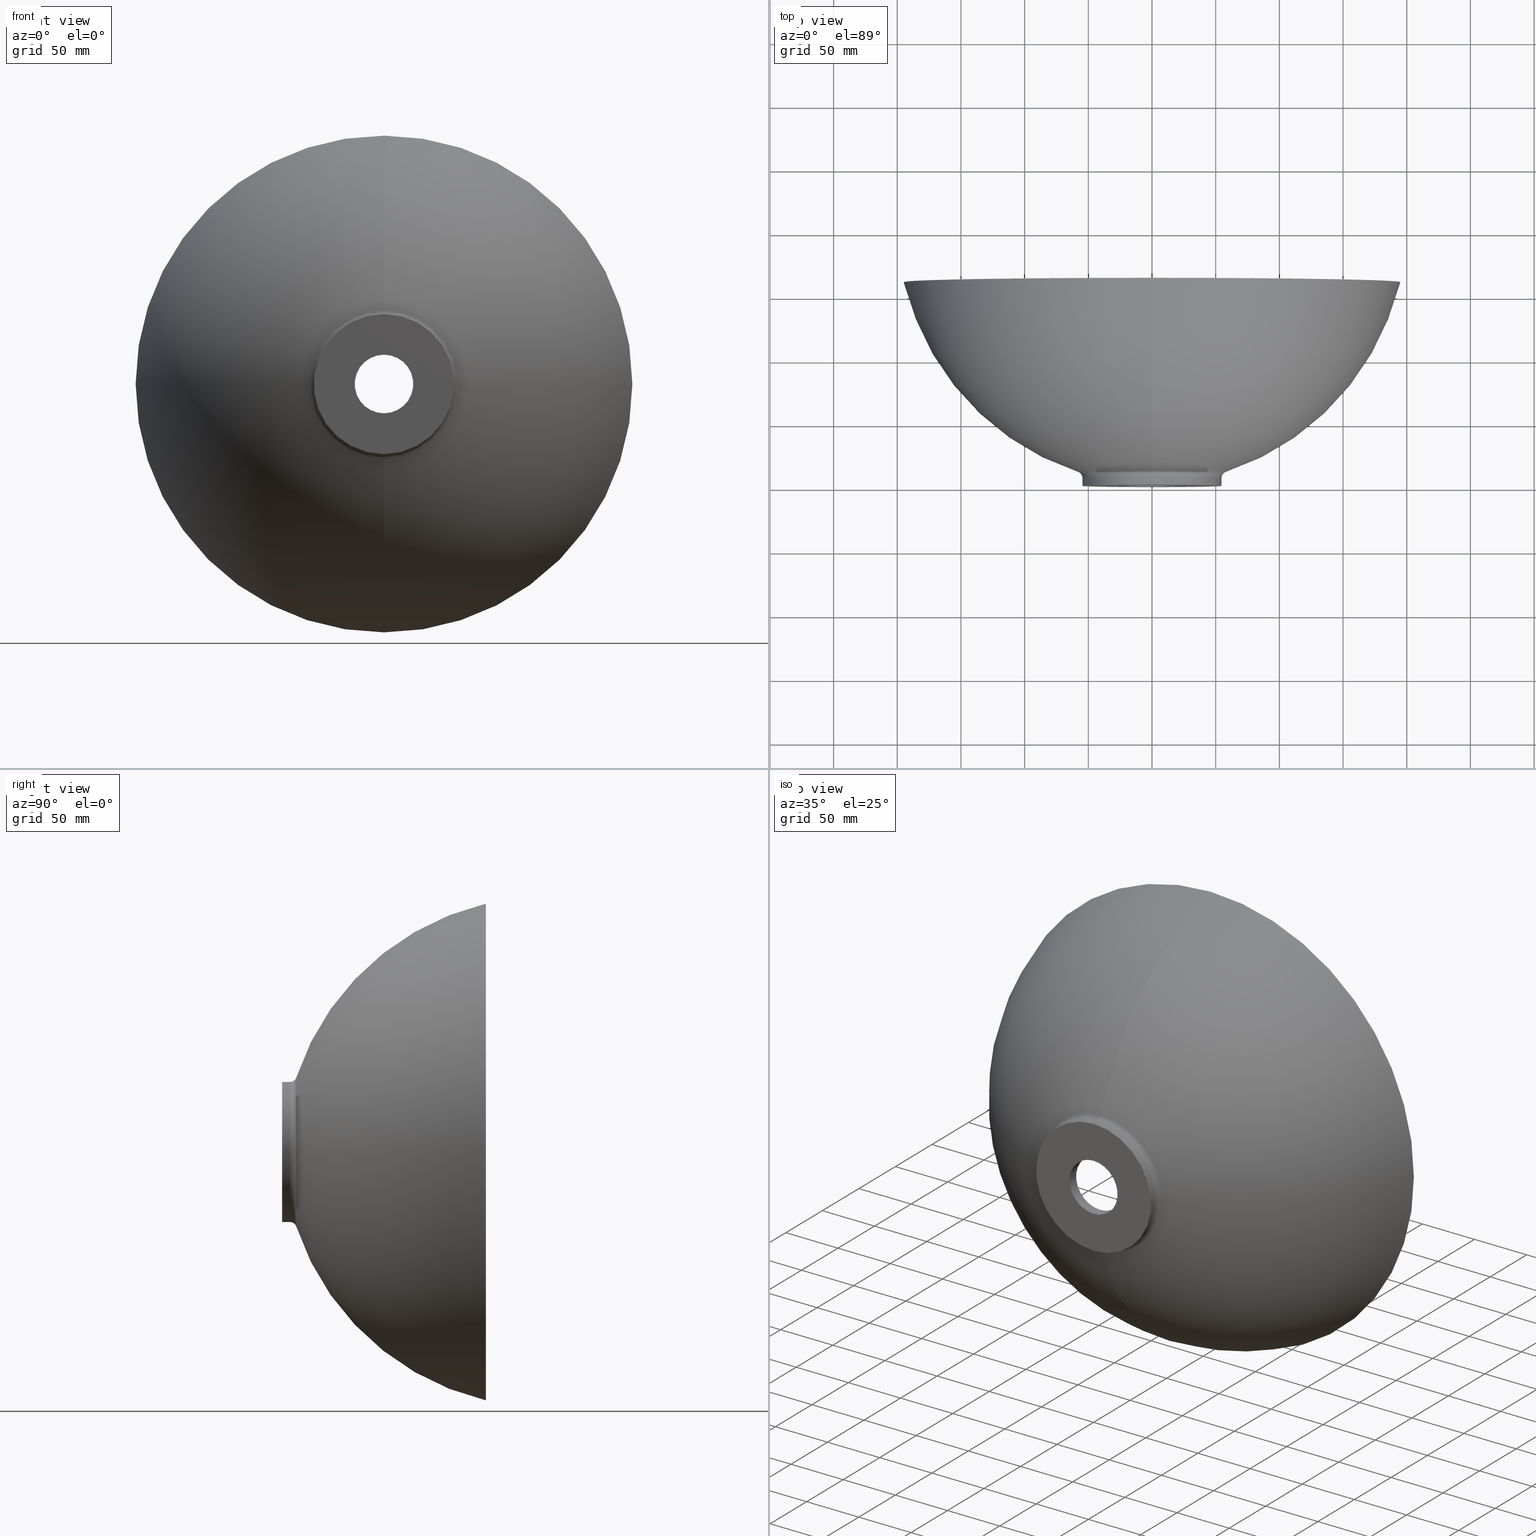
[diagram: canonical four-view strip — front | top / right | iso, engineering-drawing reading convention]
A machine part, canonical four-view strip (front | top / right | iso — engineering-drawing reading convention). The complete STEP part file that produces these views, byte-faithful:
ISO-10303-21;
HEADER;
FILE_DESCRIPTION (( 'STEP AP214' ),
    '1' );
FILE_NAME ('D787-SO.STEP',
    '2018-06-29T09:20:00',
    ( '' ),
    ( '' ),
    'SwSTEP 2.0',
    'SolidWorks 2017',
    '' );
FILE_SCHEMA (( 'AUTOMOTIVE_DESIGN' ));
ENDSEC;

DATA;
#1 = APPLICATION_PROTOCOL_DEFINITION ( 'draft international standard', 'automotive_design', 1998, #255 ) ;
#2 = DIRECTION ( 'NONE',  ( -0.0000000000000000000, -1.000000000000000000, -0.0000000000000000000 ) ) ;
#3 = CARTESIAN_POINT ( 'NONE',  ( 0.0000000000000000000, 20.00000000000000000, 0.0000000000000000000 ) ) ;
#4 = ORIENTED_EDGE ( 'NONE', *, *, #148, .T. ) ;
#5 = DIRECTION ( 'NONE',  ( 0.0000000000000000000, 0.0000000000000000000, 1.000000000000000000 ) ) ;
#6 = ORIENTED_EDGE ( 'NONE', *, *, #381, .F. ) ;
#7 = CARTESIAN_POINT ( 'NONE',  ( 0.0000000000000000000, 140.0000000000000000, 0.0000000000000000000 ) ) ;
#8 = DIRECTION ( 'NONE',  ( 0.0000000000000000000, 1.000000000000000000, 0.0000000000000000000 ) ) ;
#9 = DIRECTION ( 'NONE',  ( -0.0000000000000000000, -1.000000000000000000, -0.0000000000000000000 ) ) ;
#10 = EDGE_CURVE ( 'NONE', #448, #210, #238, .T. ) ;
#11 = DIRECTION ( 'NONE',  ( 0.0000000000000000000, 0.0000000000000000000, -1.000000000000000000 ) ) ;
#12 = DIRECTION ( 'NONE',  ( -1.000000000000000000, 0.0000000000000000000, 0.0000000000000000000 ) ) ;
#13 = FACE_OUTER_BOUND ( 'NONE', #297, .T. ) ;
#14 = CARTESIAN_POINT ( 'NONE',  ( 1.284747968416844600E-014, 20.00000000000000000, 36.10928951853636400 ) ) ;
#15 = DIRECTION ( 'NONE',  ( 0.0000000000000000000, 0.0000000000000000000, 1.000000000000000000 ) ) ;
#16 = VERTEX_POINT ( 'NONE', #233 ) ;
#17 = EDGE_CURVE ( 'NONE', #246, #86, #368, .T. ) ;
#18 = ORIENTED_EDGE ( 'NONE', *, *, #403, .F. ) ;
#19 = AXIS2_PLACEMENT_3D ( 'NONE', #266, #230, #312 ) ;
#20 = LINE ( 'NONE', #151, #418 ) ;
#21 = VERTEX_POINT ( 'NONE', #342 ) ;
#22 = CARTESIAN_POINT ( 'NONE',  ( 0.0000000000000000000, 207.6851594974558900, 0.0000000000000000000 ) ) ;
#23 = PRODUCT_DEFINITION_SHAPE ( 'NONE', 'NONE',  #265 ) ;
#24 = CARTESIAN_POINT ( 'NONE',  ( 0.0000000000000000000, 207.6851594974558900, 0.0000000000000000000 ) ) ;
#25 = DIRECTION ( 'NONE',  ( -1.000000000000000000, 0.0000000000000000000, 0.0000000000000000000 ) ) ;
#26 = VERTEX_POINT ( 'NONE', #413 ) ;
#27 = CIRCLE ( 'NONE', #95, 23.00000000000000000 ) ;
#28 = ORIENTED_EDGE ( 'NONE', *, *, #302, .F. ) ;
#29 = AXIS2_PLACEMENT_3D ( 'NONE', #22, #134, #304 ) ;
#30 = VERTEX_POINT ( 'NONE', #140 ) ;
#31 = EDGE_LOOP ( 'NONE', ( #453, #185, #42, #218 ) ) ;
#32 = DIRECTION ( 'NONE',  ( 0.0000000000000000000, 0.0000000000000000000, -1.000000000000000000 ) ) ;
#33 = DIRECTION ( 'NONE',  ( -0.0000000000000000000, -1.000000000000000000, -0.0000000000000000000 ) ) ;
#34 = ORIENTED_EDGE ( 'NONE', *, *, #114, .T. ) ;
#35 = CARTESIAN_POINT ( 'NONE',  ( 0.0000000000000000000, 207.6851594974558900, 6.448385175845634100 ) ) ;
#36 = ORIENTED_EDGE ( 'NONE', *, *, #168, .T. ) ;
#37 = AXIS2_PLACEMENT_3D ( 'NONE', #439, #88, #365 ) ;
#38 = TOROIDAL_SURFACE ( 'NONE', #406, 60.00000000000000000, 4.999999999999998200 ) ;
#39 = CIRCLE ( 'NONE', #336, 23.00000000000000000 ) ;
#40 = SURFACE_SIDE_STYLE ('',( #62 ) ) ;
#41 = ADVANCED_FACE ( 'NONE', ( #228 ), #242, .T. ) ;
#42 = ORIENTED_EDGE ( 'NONE', *, *, #209, .T. ) ;
#43 = TOROIDAL_SURFACE ( 'NONE', #173, 60.00000000000000000, 4.999999999999998200 ) ;
#44 = ORIENTED_EDGE ( 'NONE', *, *, #17, .T. ) ;
#45 = APPLICATION_PROTOCOL_DEFINITION ( 'draft international standard', 'automotive_design', 1998, #353 ) ;
#46 = UNCERTAINTY_MEASURE_WITH_UNIT (LENGTH_MEASURE( 1.000000000000000100E-005 ), #195, 'distance_accuracy_value', 'NONE');
#47 = AXIS2_PLACEMENT_3D ( 'NONE', #113, #208, #183 ) ;
#48 = DIRECTION ( 'NONE',  ( -0.0000000000000000000, -1.000000000000000000, -0.0000000000000000000 ) ) ;
#49 = ORIENTED_EDGE ( 'NONE', *, *, #347, .T. ) ;
#50 = ORIENTED_EDGE ( 'NONE', *, *, #381, .T. ) ;
#51 = DIRECTION ( 'NONE',  ( -0.0000000000000000000, -1.000000000000000000, -0.0000000000000000000 ) ) ;
#52 = CARTESIAN_POINT ( 'NONE',  ( 0.0000000000000000000, 6.351875518007669400, 0.0000000000000000000 ) ) ;
#53 = CARTESIAN_POINT ( 'NONE',  ( 0.0000000000000000000, 0.0000000000000000000, -55.00000000000001400 ) ) ;
#54 = EDGE_CURVE ( 'NONE', #394, #393, #243, .T. ) ;
#55 = ORIENTED_EDGE ( 'NONE', *, *, #17, .F. ) ;
#56 = DIRECTION ( 'NONE',  ( 0.0000000000000000000, 0.0000000000000000000, -1.000000000000000000 ) ) ;
#57 = DIRECTION ( 'NONE',  ( -0.0000000000000000000, -1.000000000000000000, -0.0000000000000000000 ) ) ;
#58 = DIRECTION ( 'NONE',  ( 0.0000000000000000000, 0.0000000000000000000, -1.000000000000000000 ) ) ;
#59 = TOROIDAL_SURFACE ( 'NONE', #334, -6.448385175845634100, 192.4496681498263800 ) ;
#60 = DIRECTION ( 'NONE',  ( -0.0000000000000000000, -1.000000000000000000, -0.0000000000000000000 ) ) ;
#61 = AXIS2_PLACEMENT_3D ( 'NONE', #358, #90, #81 ) ;
#62 = SURFACE_STYLE_FILL_AREA ( #324 ) ;
#63 = UNCERTAINTY_MEASURE_WITH_UNIT (LENGTH_MEASURE( 1.000000000000000100E-005 ), #162, 'distance_accuracy_value', 'NONE');
#64 = AXIS2_PLACEMENT_3D ( 'NONE', #436, #131, #308 ) ;
#65 = ORIENTED_EDGE ( 'NONE', *, *, #306, .T. ) ;
#66 =( LENGTH_UNIT ( ) NAMED_UNIT ( * ) SI_UNIT ( .MILLI., .METRE. ) );
#67 = CARTESIAN_POINT ( 'NONE',  ( 2.816687638038912400E-015, 9.000000000000001800, -23.00000000000000000 ) ) ;
#68 = ORIENTED_EDGE ( 'NONE', *, *, #163, .T. ) ;
#69 = DIRECTION ( 'NONE',  ( 0.0000000000000000000, 0.0000000000000000000, 1.000000000000000000 ) ) ;
#70 = DIRECTION ( 'NONE',  ( -0.0000000000000000000, -1.000000000000000000, -0.0000000000000000000 ) ) ;
#71 = CIRCLE ( 'NONE', #37, 58.43293405444508400 ) ;
#72 = VECTOR ( 'NONE', #309, 1000.000000000000000 ) ;
#73 = PRODUCT_DEFINITION_CONTEXT ( 'detailed design', #296, 'design' ) ;
#74 = EDGE_CURVE ( 'NONE', #178, #86, #294, .T. ) ;
#75 = DIRECTION ( 'NONE',  ( 0.0000000000000000000, 0.0000000000000000000, -1.000000000000000000 ) ) ;
#76 = ORIENTED_EDGE ( 'NONE', *, *, #354, .T. ) ;
#77 = ADVANCED_FACE ( 'NONE', ( #203 ), #123, .F. ) ;
#78 = CIRCLE ( 'NONE', #259, 54.99999999999999300 ) ;
#79 = DIRECTION ( 'NONE',  ( 0.0000000000000000000, 0.0000000000000000000, -1.000000000000000000 ) ) ;
#80 = CIRCLE ( 'NONE', #47, 55.00000000000001400 ) ;
#81 = DIRECTION ( 'NONE',  ( -1.224646799147352700E-016, 0.0000000000000000000, -1.000000000000000000 ) ) ;
#82 = SURFACE_SIDE_STYLE ('',( #241 ) ) ;
#83 = TOROIDAL_SURFACE ( 'NONE', #404, 204.6726731252713900, 33.08013612726855300 ) ;
#84 = ADVANCED_FACE ( 'NONE', ( #91 ), #43, .F. ) ;
#85 = FACE_OUTER_BOUND ( 'NONE', #426, .T. ) ;
#86 = VERTEX_POINT ( 'NONE', #205 ) ;
#87 = DIRECTION ( 'NONE',  ( 0.0000000000000000000, 0.0000000000000000000, -1.000000000000000000 ) ) ;
#88 = DIRECTION ( 'NONE',  ( -0.0000000000000000000, -1.000000000000000000, -0.0000000000000000000 ) ) ;
#89 = AXIS2_PLACEMENT_3D ( 'NONE', #126, #252, #232 ) ;
#90 = DIRECTION ( 'NONE',  ( 1.000000000000000000, 0.0000000000000000000, -1.224646799147353200E-016 ) ) ;
#91 = FACE_OUTER_BOUND ( 'NONE', #269, .T. ) ;
#92 = DIRECTION ( 'NONE',  ( 0.0000000000000000000, 0.0000000000000000000, 1.000000000000000000 ) ) ;
#93 = CIRCLE ( 'NONE', #64, 23.00000000000000000 ) ;
#94 = DIRECTION ( 'NONE',  ( -0.0000000000000000000, -1.000000000000000000, -0.0000000000000000000 ) ) ;
#95 = AXIS2_PLACEMENT_3D ( 'NONE', #272, #51, #56 ) ;
#96 = DIRECTION ( 'NONE',  ( -0.0000000000000000000, -1.000000000000000000, -0.0000000000000000000 ) ) ;
#97 = ORIENTED_EDGE ( 'NONE', *, *, #125, .F. ) ;
#98 = VECTOR ( 'NONE', #298, 1000.000000000000000 ) ;
#99 = CARTESIAN_POINT ( 'NONE',  ( 0.0000000000000000000, 0.0000000000000000000, 0.0000000000000000000 ) ) ;
#100 = COLOUR_RGB ( '',1.000000000000000000, 1.000000000000000000, 1.000000000000000000 ) ;
#101 = CARTESIAN_POINT ( 'NONE',  ( 7.347880794884118400E-015, 6.351875518007670300, 60.00000000000000000 ) ) ;
#102 = CARTESIAN_POINT ( 'NONE',  ( 6.735557395310444200E-015, 0.0000000000000000000, 55.00000000000000700 ) ) ;
#103 = EDGE_LOOP ( 'NONE', ( #170, #34, #300, #97 ) ) ;
#104 = ADVANCED_FACE ( 'NONE', ( #281 ), #261, .T. ) ;
#105 = EDGE_CURVE ( 'NONE', #21, #393, #93, .T. ) ;
#106 = ORIENTED_EDGE ( 'NONE', *, *, #347, .F. ) ;
#107 = PRODUCT_RELATED_PRODUCT_CATEGORY ( 'part', '', ( #275 ) ) ;
#108 = FACE_OUTER_BOUND ( 'NONE', #303, .T. ) ;
#109 = EDGE_CURVE ( 'NONE', #285, #448, #158, .T. ) ;
#110 = PRODUCT_DEFINITION_CONTEXT ( 'detailed design', #398, 'design' ) ;
#111 = ORIENTED_EDGE ( 'NONE', *, *, #357, .T. ) ;
#112 = CIRCLE ( 'NONE', #161, 192.4496681498263800 ) ;
#113 = CARTESIAN_POINT ( 'NONE',  ( 0.0000000000000000000, 0.0000000000000000000, 0.0000000000000000000 ) ) ;
#114 = EDGE_CURVE ( 'NONE', #448, #405, #339, .T. ) ;
#115 = EDGE_LOOP ( 'NONE', ( #117, #18, #235, #449 ) ) ;
#116 = PRODUCT_DEFINITION_FORMATION_WITH_SPECIFIED_SOURCE ( 'ANY', '', #275, .NOT_KNOWN. ) ;
#117 = ORIENTED_EDGE ( 'NONE', *, *, #54, .F. ) ;
#118 = AXIS2_PLACEMENT_3D ( 'NONE', #267, #271, #313 ) ;
#119 = DIRECTION ( 'NONE',  ( -0.0000000000000000000, -1.000000000000000000, -0.0000000000000000000 ) ) ;
#120 = AXIS2_PLACEMENT_3D ( 'NONE', #146, #402, #15 ) ;
#121 = PRESENTATION_STYLE_ASSIGNMENT (( #290 ) ) ;
#122 = ORIENTED_EDGE ( 'NONE', *, *, #311, .F. ) ;
#123 = CYLINDRICAL_SURFACE ( 'NONE', #180, 23.00000000000000000 ) ;
#124 = FACE_OUTER_BOUND ( 'NONE', #361, .T. ) ;
#125 = EDGE_CURVE ( 'NONE', #210, #30, #234, .T. ) ;
#126 = CARTESIAN_POINT ( 'NONE',  ( 0.0000000000000000000, 128.3656073108670100, -204.6726731252713900 ) ) ;
#127 = APPLICATION_PROTOCOL_DEFINITION ( 'draft international standard', 'automotive_design', 1998, #296 ) ;
#128 = CONICAL_SURFACE ( 'NONE', #227, 23.00000000000000000, 0.8726646259971667700 ) ;
#129 = ORIENTED_EDGE ( 'NONE', *, *, #221, .F. ) ;
#130 =( NAMED_UNIT ( * ) SI_UNIT ( $, .STERADIAN. ) SOLID_ANGLE_UNIT ( ) );
#131 = DIRECTION ( 'NONE',  ( -0.0000000000000000000, -1.000000000000000000, -0.0000000000000000000 ) ) ;
#132 = AXIS2_PLACEMENT_3D ( 'NONE', #247, #216, #32 ) ;
#133 = CARTESIAN_POINT ( 'NONE',  ( 0.0000000000000000000, 140.0000000000000000, 0.0000000000000000000 ) ) ;
#134 = DIRECTION ( 'NONE',  ( -0.0000000000000000000, -1.000000000000000000, -0.0000000000000000000 ) ) ;
#135 = DIRECTION ( 'NONE',  ( -0.0000000000000000000, -1.000000000000000000, -0.0000000000000000000 ) ) ;
#136 = DIRECTION ( 'NONE',  ( 0.0000000000000000000, 0.0000000000000000000, -1.000000000000000000 ) ) ;
#137 = ORIENTED_EDGE ( 'NONE', *, *, #314, .F. ) ;
#138 = LINE ( 'NONE', #159, #199 ) ;
#139 = AXIS2_PLACEMENT_3D ( 'NONE', #197, #367, #411 ) ;
#140 = CARTESIAN_POINT ( 'NONE',  ( 0.0000000000000000000, 11.09995979719670700, -58.43293405444508400 ) ) ;
#141 = FILL_AREA_STYLE ('',( #149 ) ) ;
#142 = EDGE_CURVE ( 'NONE', #394, #223, #27, .T. ) ;
#143 = ORIENTED_EDGE ( 'NONE', *, *, #316, .F. ) ;
#144 = AXIS2_PLACEMENT_3D ( 'NONE', #379, #380, #58 ) ;
#145 = CARTESIAN_POINT ( 'NONE',  ( 0.0000000000000000000, 6.351875518007669400, 0.0000000000000000000 ) ) ;
#146 = CARTESIAN_POINT ( 'NONE',  ( 0.0000000000000000000, 6.351875518007670300, -60.00000000000000000 ) ) ;
#147 = DIRECTION ( 'NONE',  ( 0.0000000000000000000, 1.000000000000000000, 0.0000000000000000000 ) ) ;
#148 = EDGE_CURVE ( 'NONE', #285, #26, #344, .T. ) ;
#149 = FILL_AREA_STYLE_COLOUR ( '', #100 ) ;
#150 = AXIS2_PLACEMENT_3D ( 'NONE', #217, #25, #443 ) ;
#151 = CARTESIAN_POINT ( 'NONE',  ( 0.0000000000000000000, 0.0000000000000000000, -55.00000000000000700 ) ) ;
#152 = CARTESIAN_POINT ( 'NONE',  ( 2.388061258337338900E-014, 160.0000000000000000, 195.0000000000000000 ) ) ;
#153 = ADVANCED_FACE ( 'NONE', ( #13 ), #315, .T. ) ;
#154 = CARTESIAN_POINT ( 'NONE',  ( 0.0000000000000000000, 160.0000000000000000, 0.0000000000000000000 ) ) ;
#155 = CARTESIAN_POINT ( 'NONE',  ( 0.0000000000000000000, 0.0000000000000000000, 0.0000000000000000000 ) ) ;
#156 = DIRECTION ( 'NONE',  ( 0.0000000000000000000, -0.0000000000000000000, 1.000000000000000000 ) ) ;
#157 = ADVANCED_FACE ( 'NONE', ( #124 ), #128, .F. ) ;
#158 = CIRCLE ( 'NONE', #61, 33.08013612726856700 ) ;
#159 = CARTESIAN_POINT ( 'NONE',  ( 0.0000000000000000000, 9.000000000000001800, 23.00000000000000000 ) ) ;
#160 = CARTESIAN_POINT ( 'NONE',  ( 7.155970565456453900E-015, 11.09995979719670700, 58.43293405444508400 ) ) ;
#161 = AXIS2_PLACEMENT_3D ( 'NONE', #375, #407, #299 ) ;
#162 =( LENGTH_UNIT ( ) NAMED_UNIT ( * ) SI_UNIT ( .MILLI., .METRE. ) );
#163 = EDGE_CURVE ( 'NONE', #26, #285, #301, .T. ) ;
#164 = AXIS2_PLACEMENT_3D ( 'NONE', #99, #94, #445 ) ;
#165 = PRODUCT_RELATED_PRODUCT_CATEGORY ( 'part', '', ( #438 ) ) ;
#166 = CIRCLE ( 'NONE', #89, 33.08013612726856700 ) ;
#167 = ORIENTED_EDGE ( 'NONE', *, *, #54, .T. ) ;
#168 = EDGE_CURVE ( 'NONE', #26, #210, #166, .T. ) ;
#169 = FACE_OUTER_BOUND ( 'NONE', #115, .T. ) ;
#170 = ORIENTED_EDGE ( 'NONE', *, *, #221, .T. ) ;
#171 = PRODUCT_DEFINITION_FORMATION_WITH_SPECIFIED_SOURCE ( 'ANY', '', #438, .NOT_KNOWN. ) ;
#172 = CIRCLE ( 'NONE', #409, 36.10928951853636400 ) ;
#173 = AXIS2_PLACEMENT_3D ( 'NONE', #176, #96, #377 ) ;
#174 = LINE ( 'NONE', #67, #98 ) ;
#175 = AXIS2_PLACEMENT_3D ( 'NONE', #182, #385, #260 ) ;
#176 = CARTESIAN_POINT ( 'NONE',  ( 0.0000000000000000000, 6.351875518007670300, 0.0000000000000000000 ) ) ;
#177 = VERTEX_POINT ( 'NONE', #14 ) ;
#178 = VERTEX_POINT ( 'NONE', #53 ) ;
#179 = VECTOR ( 'NONE', #57, 1000.000000000000000 ) ;
#180 = AXIS2_PLACEMENT_3D ( 'NONE', #417, #135, #378 ) ;
#181 = AXIS2_PLACEMENT_3D ( 'NONE', #155, #282, #390 ) ;
#182 = CARTESIAN_POINT ( 'NONE',  ( 0.0000000000000000000, 0.0000000000000000000, 0.0000000000000000000 ) ) ;
#183 = DIRECTION ( 'NONE',  ( 0.0000000000000000000, 0.0000000000000000000, -1.000000000000000000 ) ) ;
#184 = CARTESIAN_POINT ( 'NONE',  ( 0.0000000000000000000, 9.000000000000001800, 0.0000000000000000000 ) ) ;
#185 = ORIENTED_EDGE ( 'NONE', *, *, #403, .T. ) ;
#186 = LINE ( 'NONE', #401, #179 ) ;
#187 = ORIENTED_EDGE ( 'NONE', *, *, #240, .T. ) ;
#188 = AXIS2_PLACEMENT_3D ( 'NONE', #226, #48, #325 ) ;
#189 = PRODUCT_CONTEXT ( 'NONE', #255, 'mechanical' ) ;
#190 = APPLICATION_PROTOCOL_DEFINITION ( 'draft international standard', 'automotive_design', 1998, #398 ) ;
#191 = ORIENTED_EDGE ( 'NONE', *, *, #198, .F. ) ;
#192 = FACE_OUTER_BOUND ( 'NONE', #335, .T. ) ;
#193 = CIRCLE ( 'NONE', #139, 58.43293405444508400 ) ;
#194 = DIRECTION ( 'NONE',  ( 0.0000000000000000000, 1.000000000000000000, 0.0000000000000000000 ) ) ;
#195 =( LENGTH_UNIT ( ) NAMED_UNIT ( * ) SI_UNIT ( .MILLI., .METRE. ) );
#196 = FACE_BOUND ( 'NONE', #202, .T. ) ;
#197 = CARTESIAN_POINT ( 'NONE',  ( 0.0000000000000000000, 11.09995979719670700, 0.0000000000000000000 ) ) ;
#198 = EDGE_CURVE ( 'NONE', #422, #178, #20, .T. ) ;
#199 = VECTOR ( 'NONE', #331, 1000.000000000000000 ) ;
#200 = AXIS2_PLACEMENT_3D ( 'NONE', #328, #219, #11 ) ;
#201 = ORIENTED_EDGE ( 'NONE', *, *, #125, .T. ) ;
#202 = EDGE_LOOP ( 'NONE', ( #389, #28 ) ) ;
#203 = FACE_OUTER_BOUND ( 'NONE', #408, .T. ) ;
#204 = ORIENTED_EDGE ( 'NONE', *, *, #370, .F. ) ;
#205 = CARTESIAN_POINT ( 'NONE',  ( 6.735557395310445800E-015, 0.0000000000000000000, 55.00000000000002100 ) ) ;
#206 = AXIS2_PLACEMENT_3D ( 'NONE', #154, #60, #136 ) ;
#207 = ORIENTED_EDGE ( 'NONE', *, *, #198, .T. ) ;
#208 = DIRECTION ( 'NONE',  ( -0.0000000000000000000, -1.000000000000000000, -0.0000000000000000000 ) ) ;
#209 = EDGE_CURVE ( 'NONE', #394, #177, #138, .T. ) ;
#210 = VERTEX_POINT ( 'NONE', #395 ) ;
#211 = CARTESIAN_POINT ( 'NONE',  ( 0.0000000000000000000, 9.000000000000001800, 0.0000000000000000000 ) ) ;
#212 = PRODUCT_CONTEXT ( 'NONE', #353, 'mechanical' ) ;
#213 = ADVANCED_FACE ( 'NONE', ( #360 ), #59, .F. ) ;
#214 =( GEOMETRIC_REPRESENTATION_CONTEXT ( 3 ) GLOBAL_UNCERTAINTY_ASSIGNED_CONTEXT ( ( #63 ) ) GLOBAL_UNIT_ASSIGNED_CONTEXT ( ( #162, #359, #399 ) ) REPRESENTATION_CONTEXT ( 'NONE', 'WORKASPACE' ) );
#215 = DIRECTION ( 'NONE',  ( -0.0000000000000000000, -1.000000000000000000, -0.0000000000000000000 ) ) ;
#216 = DIRECTION ( 'NONE',  ( -0.0000000000000000000, -1.000000000000000000, -0.0000000000000000000 ) ) ;
#217 = CARTESIAN_POINT ( 'NONE',  ( 0.0000000000000000000, 207.6851594974558900, 6.448385175845634100 ) ) ;
#218 = ORIENTED_EDGE ( 'NONE', *, *, #354, .F. ) ;
#219 = DIRECTION ( 'NONE',  ( -0.0000000000000000000, -1.000000000000000000, -0.0000000000000000000 ) ) ;
#220 = FILL_AREA_STYLE_COLOUR ( '', #258 ) ;
#221 = EDGE_CURVE ( 'NONE', #210, #448, #295, .T. ) ;
#222 = ORIENTED_EDGE ( 'NONE', *, *, #314, .T. ) ;
#223 = VERTEX_POINT ( 'NONE', #337 ) ;
#224 = ORIENTED_EDGE ( 'NONE', *, *, #276, .T. ) ;
#225 = DIRECTION ( 'NONE',  ( -0.0000000000000000000, -1.000000000000000000, -0.0000000000000000000 ) ) ;
#226 = CARTESIAN_POINT ( 'NONE',  ( 0.0000000000000000000, 207.6851594974558900, 0.0000000000000000000 ) ) ;
#227 = AXIS2_PLACEMENT_3D ( 'NONE', #356, #8, #92 ) ;
#228 = FACE_OUTER_BOUND ( 'NONE', #320, .T. ) ;
#229 = ORIENTED_EDGE ( 'NONE', *, *, #370, .T. ) ;
#230 = DIRECTION ( 'NONE',  ( -0.0000000000000000000, -1.000000000000000000, -0.0000000000000000000 ) ) ;
#231 = ORIENTED_EDGE ( 'NONE', *, *, #109, .F. ) ;
#232 = DIRECTION ( 'NONE',  ( 0.0000000000000000000, 0.0000000000000000000, 1.000000000000000000 ) ) ;
#233 = CARTESIAN_POINT ( 'NONE',  ( 0.0000000000000000000, 20.00000000000000000, -36.10928951853636400 ) ) ;
#234 = CIRCLE ( 'NONE', #150, 207.0152804173007700 ) ;
#235 = ORIENTED_EDGE ( 'NONE', *, *, #316, .T. ) ;
#236 = AXIS2_PLACEMENT_3D ( 'NONE', #345, #147, #156 ) ;
#237 =( GEOMETRIC_REPRESENTATION_CONTEXT ( 3 ) GLOBAL_UNCERTAINTY_ASSIGNED_CONTEXT ( ( #46 ) ) GLOBAL_UNIT_ASSIGNED_CONTEXT ( ( #195, #318, #130 ) ) REPRESENTATION_CONTEXT ( 'NONE', 'WORKASPACE' ) );
#238 = CIRCLE ( 'NONE', #118, 195.0000000000000000 ) ;
#239 = CARTESIAN_POINT ( 'NONE',  ( 2.816687638038912400E-015, -6.123233995736772200E-017, 23.00000000000000000 ) ) ;
#240 = EDGE_CURVE ( 'NONE', #246, #405, #444, .T. ) ;
#241 = SURFACE_STYLE_FILL_AREA ( #141 ) ;
#242 = CYLINDRICAL_SURFACE ( 'NONE', #164, 55.00000000000000700 ) ;
#243 = LINE ( 'NONE', #340, #72 ) ;
#244 = DIRECTION ( 'NONE',  ( 0.0000000000000000000, 0.0000000000000000000, -1.000000000000000000 ) ) ;
#245 = MECHANICAL_DESIGN_GEOMETRIC_PRESENTATION_REPRESENTATION (  '', ( #452 ), #237 ) ;
#246 = VERTEX_POINT ( 'NONE', #341 ) ;
#247 = CARTESIAN_POINT ( 'NONE',  ( 0.0000000000000000000, 0.0000000000000000000, 0.0000000000000000000 ) ) ;
#248 = PRESENTATION_LAYER_ASSIGNMENT (  '', '', ( #452 ) ) ;
#249 = ORIENTED_EDGE ( 'NONE', *, *, #276, .F. ) ;
#250 = DIRECTION ( 'NONE',  ( -0.0000000000000000000, -1.000000000000000000, -0.0000000000000000000 ) ) ;
#251 = AXIS2_PLACEMENT_3D ( 'NONE', #3, #9, #451 ) ;
#252 = DIRECTION ( 'NONE',  ( -1.000000000000000000, 0.0000000000000000000, 0.0000000000000000000 ) ) ;
#253 = CLOSED_SHELL ( 'NONE', ( #435, #104, #362, #392, #77, #157, #291, #213, #369, #327, #352, #41, #84, #153, #425 ) ) ;
#254 = DIRECTION ( 'NONE',  ( -1.224646799147354200E-016, 0.0000000000000000000, -1.000000000000000000 ) ) ;
#255 = APPLICATION_CONTEXT ( 'automotive_design' ) ;
#256 = DIRECTION ( 'NONE',  ( -0.0000000000000000000, -1.000000000000000000, -0.0000000000000000000 ) ) ;
#257 =( NAMED_UNIT ( * ) PLANE_ANGLE_UNIT ( ) SI_UNIT ( $, .RADIAN. ) );
#258 = COLOUR_RGB ( '',1.000000000000000000, 1.000000000000000000, 1.000000000000000000 ) ;
#259 = AXIS2_PLACEMENT_3D ( 'NONE', #145, #119, #244 ) ;
#260 = DIRECTION ( 'NONE',  ( 1.000000000000000000, 0.0000000000000000000, 0.0000000000000000000 ) ) ;
#261 = TOROIDAL_SURFACE ( 'NONE', #19, -6.448385175845634100, 207.0152804173007700 ) ;
#262 = ORIENTED_EDGE ( 'NONE', *, *, #74, .F. ) ;
#263 = DIRECTION ( 'NONE',  ( 0.0000000000000000000, 0.0000000000000000000, -1.000000000000000000 ) ) ;
#264 = ORIENTED_EDGE ( 'NONE', *, *, #109, .T. ) ;
#265 = PRODUCT_DEFINITION ( 'UNKNOWN', '', #116, #73 ) ;
#266 = CARTESIAN_POINT ( 'NONE',  ( 0.0000000000000000000, 207.6851594974558900, 0.0000000000000000000 ) ) ;
#267 = CARTESIAN_POINT ( 'NONE',  ( 0.0000000000000000000, 160.0000000000000000, 0.0000000000000000000 ) ) ;
#268 = EDGE_LOOP ( 'NONE', ( #122, #351, #229, #76 ) ) ;
#269 = EDGE_LOOP ( 'NONE', ( #456, #6, #376, #65 ) ) ;
#270 = ORIENTED_EDGE ( 'NONE', *, *, #302, .T. ) ;
#271 = DIRECTION ( 'NONE',  ( -0.0000000000000000000, -1.000000000000000000, -0.0000000000000000000 ) ) ;
#272 = CARTESIAN_POINT ( 'NONE',  ( 0.0000000000000000000, 9.000000000000001800, 0.0000000000000000000 ) ) ;
#273 = DIRECTION ( 'NONE',  ( -0.0000000000000000000, -1.000000000000000000, -0.0000000000000000000 ) ) ;
#274 = PRODUCT_DEFINITION_SHAPE ( 'NONE', 'NONE',  #383 ) ;
#275 = PRODUCT ( 'D787-SO', 'D787-SO', '', ( #212 ) ) ;
#276 = EDGE_CURVE ( 'NONE', #405, #30, #193, .T. ) ;
#277 = CIRCLE ( 'NONE', #251, 36.10928951853636400 ) ;
#278 = VECTOR ( 'NONE', #273, 1000.000000000000000 ) ;
#279 = FACE_OUTER_BOUND ( 'NONE', #440, .T. ) ;
#280 = EDGE_LOOP ( 'NONE', ( #68, #264, #129, #386 ) ) ;
#281 = FACE_OUTER_BOUND ( 'NONE', #103, .T. ) ;
#282 = DIRECTION ( 'NONE',  ( 0.0000000000000000000, 0.0000000000000000000, 1.000000000000000000 ) ) ;
#283 = CYLINDRICAL_SURFACE ( 'NONE', #132, 23.00000000000000000 ) ;
#284 = CARTESIAN_POINT ( 'NONE',  ( 0.0000000000000000000, 9.000000000000001800, 23.00000000000000000 ) ) ;
#285 = VERTEX_POINT ( 'NONE', #428 ) ;
#286 = AXIS2_PLACEMENT_3D ( 'NONE', #101, #363, #254 ) ;
#287 = PLANE ( 'NONE',  #236 ) ;
#288 = DIRECTION ( 'NONE',  ( -0.0000000000000000000, -1.000000000000000000, -0.0000000000000000000 ) ) ;
#289 = ORIENTED_EDGE ( 'NONE', *, *, #10, .T. ) ;
#290 = SURFACE_STYLE_USAGE ( .BOTH. , #40 ) ;
#291 = ADVANCED_FACE ( 'NONE', ( #85 ), #310, .F. ) ;
#292 = DIRECTION ( 'NONE',  ( -1.224646799147353200E-016, 0.0000000000000000000, -1.000000000000000000 ) ) ;
#293 = DIRECTION ( 'NONE',  ( 0.0000000000000000000, 0.0000000000000000000, -1.000000000000000000 ) ) ;
#294 = CIRCLE ( 'NONE', #144, 55.00000000000001400 ) ;
#295 = CIRCLE ( 'NONE', #206, 195.0000000000000000 ) ;
#296 = APPLICATION_CONTEXT ( 'automotive_design' ) ;
#297 = EDGE_LOOP ( 'NONE', ( #343, #289, #201, #249 ) ) ;
#298 = DIRECTION ( 'NONE',  ( 9.381338752702746800E-017, 0.6427876096865378100, -0.7660444431189793500 ) ) ;
#299 = DIRECTION ( 'NONE',  ( -1.224646799147353200E-016, 0.0000000000000000000, -1.000000000000000000 ) ) ;
#300 = ORIENTED_EDGE ( 'NONE', *, *, #306, .F. ) ;
#301 = CIRCLE ( 'NONE', #429, 173.7059762889333600 ) ;
#302 = EDGE_CURVE ( 'NONE', #393, #21, #400, .T. ) ;
#303 = EDGE_LOOP ( 'NONE', ( #231, #4, #36, #382 ) ) ;
#304 = DIRECTION ( 'NONE',  ( 0.0000000000000000000, 0.0000000000000000000, -1.000000000000000000 ) ) ;
#305 = CIRCLE ( 'NONE', #355, 54.99999999999999300 ) ;
#306 = EDGE_CURVE ( 'NONE', #30, #405, #71, .T. ) ;
#307 = ADVANCED_BREP_SHAPE_REPRESENTATION ( 'D787-SO', ( #430, #175 ), #214 ) ;
#308 = DIRECTION ( 'NONE',  ( 0.0000000000000000000, 0.0000000000000000000, -1.000000000000000000 ) ) ;
#309 = DIRECTION ( 'NONE',  ( -0.0000000000000000000, -1.000000000000000000, -0.0000000000000000000 ) ) ;
#310 = TOROIDAL_SURFACE ( 'NONE', #29, -6.448385175845634100, 192.4496681498263800 ) ;
#311 = EDGE_CURVE ( 'NONE', #285, #177, #112, .T. ) ;
#312 = DIRECTION ( 'NONE',  ( 0.0000000000000000000, 0.0000000000000000000, -1.000000000000000000 ) ) ;
#313 = DIRECTION ( 'NONE',  ( 0.0000000000000000000, 0.0000000000000000000, -1.000000000000000000 ) ) ;
#314 = EDGE_CURVE ( 'NONE', #177, #16, #172, .T. ) ;
#315 = TOROIDAL_SURFACE ( 'NONE', #188, -6.448385175845634100, 207.0152804173007700 ) ;
#316 = EDGE_CURVE ( 'NONE', #223, #21, #186, .T. ) ;
#317 = CIRCLE ( 'NONE', #120, 4.999999999999997300 ) ;
#318 =( NAMED_UNIT ( * ) PLANE_ANGLE_UNIT ( ) SI_UNIT ( $, .RADIAN. ) );
#319 = CARTESIAN_POINT ( 'NONE',  ( 0.0000000000000000000, 128.3656073108670100, 0.0000000000000000000 ) ) ;
#320 = EDGE_LOOP ( 'NONE', ( #55, #111, #207, #106 ) ) ;
#321 = ORIENTED_EDGE ( 'NONE', *, *, #311, .T. ) ;
#322 = CONICAL_SURFACE ( 'NONE', #416, 23.00000000000000000, 0.8726646259971667700 ) ;
#323 = ORIENTED_EDGE ( 'NONE', *, *, #424, .T. ) ;
#324 = FILL_AREA_STYLE ('',( #220 ) ) ;
#325 = DIRECTION ( 'NONE',  ( 0.0000000000000000000, 0.0000000000000000000, -1.000000000000000000 ) ) ;
#326 = DIRECTION ( 'NONE',  ( -0.0000000000000000000, -1.000000000000000000, -0.0000000000000000000 ) ) ;
#327 = ADVANCED_FACE ( 'NONE', ( #169 ), #283, .F. ) ;
#328 = CARTESIAN_POINT ( 'NONE',  ( 0.0000000000000000000, -6.123233995736772200E-017, 0.0000000000000000000 ) ) ;
#329 = CARTESIAN_POINT ( 'NONE',  ( 0.0000000000000000000, 128.3656073108670100, 0.0000000000000000000 ) ) ;
#330 = AXIS2_PLACEMENT_3D ( 'NONE', #133, #2, #332 ) ;
#331 = DIRECTION ( 'NONE',  ( 0.0000000000000000000, 0.6427876096865378100, 0.7660444431189793500 ) ) ;
#332 = DIRECTION ( 'NONE',  ( 0.0000000000000000000, 0.0000000000000000000, -1.000000000000000000 ) ) ;
#333 = ORIENTED_EDGE ( 'NONE', *, *, #74, .T. ) ;
#334 = AXIS2_PLACEMENT_3D ( 'NONE', #24, #397, #263 ) ;
#335 = EDGE_LOOP ( 'NONE', ( #419, #187, #224, #388 ) ) ;
#336 = AXIS2_PLACEMENT_3D ( 'NONE', #211, #421, #454 ) ;
#337 = CARTESIAN_POINT ( 'NONE',  ( 3.619400110437487600E-015, 9.000000000000001800, -23.00000000000000000 ) ) ;
#338 = FACE_OUTER_BOUND ( 'NONE', #31, .T. ) ;
#339 = CIRCLE ( 'NONE', #432, 207.0152804173007700 ) ;
#340 = CARTESIAN_POINT ( 'NONE',  ( 2.816687638038912400E-015, 0.0000000000000000000, 23.00000000000000000 ) ) ;
#341 = CARTESIAN_POINT ( 'NONE',  ( 6.735557395310443400E-015, 6.351875518007669400, 54.99999999999999300 ) ) ;
#342 = CARTESIAN_POINT ( 'NONE',  ( 0.0000000000000000000, -6.123233995736772200E-017, -23.00000000000000000 ) ) ;
#343 = ORIENTED_EDGE ( 'NONE', *, *, #114, .F. ) ;
#344 = CIRCLE ( 'NONE', #330, 173.7059762889333600 ) ;
#345 = CARTESIAN_POINT ( 'NONE',  ( -23.00000000000000000, -3.061616997868386100E-017, 0.0000000000000000000 ) ) ;
#346 = DIRECTION ( 'NONE',  ( 0.0000000000000000000, 0.0000000000000000000, -1.000000000000000000 ) ) ;
#347 = EDGE_CURVE ( 'NONE', #86, #178, #80, .T. ) ;
#348 = CARTESIAN_POINT ( 'NONE',  ( 0.0000000000000000000, 6.351875518007669400, -54.99999999999999300 ) ) ;
#349 =( GEOMETRIC_REPRESENTATION_CONTEXT ( 3 ) GLOBAL_UNCERTAINTY_ASSIGNED_CONTEXT ( ( #446 ) ) GLOBAL_UNIT_ASSIGNED_CONTEXT ( ( #66, #257, #396 ) ) REPRESENTATION_CONTEXT ( 'NONE', 'WORKASPACE' ) );
#350 = ORIENTED_EDGE ( 'NONE', *, *, #142, .T. ) ;
#351 = ORIENTED_EDGE ( 'NONE', *, *, #163, .F. ) ;
#352 = ADVANCED_FACE ( 'NONE', ( #196, #427 ), #287, .F. ) ;
#353 = APPLICATION_CONTEXT ( 'automotive_design' ) ;
#354 = EDGE_CURVE ( 'NONE', #16, #177, #277, .T. ) ;
#355 = AXIS2_PLACEMENT_3D ( 'NONE', #52, #326, #346 ) ;
#356 = CARTESIAN_POINT ( 'NONE',  ( 0.0000000000000000000, 9.000000000000001800, 0.0000000000000000000 ) ) ;
#357 = EDGE_CURVE ( 'NONE', #246, #422, #78, .T. ) ;
#358 = CARTESIAN_POINT ( 'NONE',  ( 2.506517340157961100E-014, 128.3656073108670100, 204.6726731252713900 ) ) ;
#359 =( NAMED_UNIT ( * ) PLANE_ANGLE_UNIT ( ) SI_UNIT ( $, .RADIAN. ) );
#360 = FACE_OUTER_BOUND ( 'NONE', #268, .T. ) ;
#361 = EDGE_LOOP ( 'NONE', ( #350, #323, #137, #372 ) ) ;
#362 = ADVANCED_FACE ( 'NONE', ( #192 ), #38, .F. ) ;
#363 = DIRECTION ( 'NONE',  ( 1.000000000000000000, 0.0000000000000000000, -1.224646799147353200E-016 ) ) ;
#364 = CARTESIAN_POINT ( 'NONE',  ( 0.0000000000000000000, 6.351875518007670300, 0.0000000000000000000 ) ) ;
#365 = DIRECTION ( 'NONE',  ( 0.0000000000000000000, 0.0000000000000000000, -1.000000000000000000 ) ) ;
#366 = FACE_OUTER_BOUND ( 'NONE', #280, .T. ) ;
#367 = DIRECTION ( 'NONE',  ( -0.0000000000000000000, -1.000000000000000000, -0.0000000000000000000 ) ) ;
#368 = LINE ( 'NONE', #102, #278 ) ;
#369 = ADVANCED_FACE ( 'NONE', ( #338 ), #322, .F. ) ;
#370 = EDGE_CURVE ( 'NONE', #26, #16, #374, .T. ) ;
#371 = AXIS2_PLACEMENT_3D ( 'NONE', #35, #12, #69 ) ;
#372 = ORIENTED_EDGE ( 'NONE', *, *, #209, .F. ) ;
#373 = CARTESIAN_POINT ( 'NONE',  ( -7.896994265268598000E-016, 207.6851594974558900, -6.448385175845634100 ) ) ;
#374 = CIRCLE ( 'NONE', #371, 192.4496681498263800 ) ;
#375 = CARTESIAN_POINT ( 'NONE',  ( -7.896994265268598000E-016, 207.6851594974558900, -6.448385175845634100 ) ) ;
#376 = ORIENTED_EDGE ( 'NONE', *, *, #391, .T. ) ;
#377 = DIRECTION ( 'NONE',  ( 0.0000000000000000000, 0.0000000000000000000, -1.000000000000000000 ) ) ;
#378 = DIRECTION ( 'NONE',  ( 0.0000000000000000000, 0.0000000000000000000, -1.000000000000000000 ) ) ;
#379 = CARTESIAN_POINT ( 'NONE',  ( 0.0000000000000000000, 0.0000000000000000000, 0.0000000000000000000 ) ) ;
#380 = DIRECTION ( 'NONE',  ( -0.0000000000000000000, -1.000000000000000000, -0.0000000000000000000 ) ) ;
#381 = EDGE_CURVE ( 'NONE', #422, #246, #305, .T. ) ;
#382 = ORIENTED_EDGE ( 'NONE', *, *, #10, .F. ) ;
#383 = PRODUCT_DEFINITION ( 'UNKNOWN', '', #171, #110 ) ;
#384 = ORIENTED_EDGE ( 'NONE', *, *, #148, .F. ) ;
#385 = DIRECTION ( 'NONE',  ( 0.0000000000000000000, 0.0000000000000000000, 1.000000000000000000 ) ) ;
#386 = ORIENTED_EDGE ( 'NONE', *, *, #168, .F. ) ;
#387 = AXIS2_PLACEMENT_3D ( 'NONE', #431, #33, #423 ) ;
#388 = ORIENTED_EDGE ( 'NONE', *, *, #391, .F. ) ;
#389 = ORIENTED_EDGE ( 'NONE', *, *, #105, .F. ) ;
#390 = DIRECTION ( 'NONE',  ( 1.000000000000000000, 0.0000000000000000000, 0.0000000000000000000 ) ) ;
#391 = EDGE_CURVE ( 'NONE', #422, #30, #317, .T. ) ;
#392 = ADVANCED_FACE ( 'NONE', ( #279 ), #442, .T. ) ;
#393 = VERTEX_POINT ( 'NONE', #239 ) ;
#394 = VERTEX_POINT ( 'NONE', #284 ) ;
#395 = CARTESIAN_POINT ( 'NONE',  ( 0.0000000000000000000, 160.0000000000000000, -195.0000000000000000 ) ) ;
#396 =( NAMED_UNIT ( * ) SI_UNIT ( $, .STERADIAN. ) SOLID_ANGLE_UNIT ( ) );
#397 = DIRECTION ( 'NONE',  ( -0.0000000000000000000, -1.000000000000000000, -0.0000000000000000000 ) ) ;
#398 = APPLICATION_CONTEXT ( 'automotive_design' ) ;
#399 =( NAMED_UNIT ( * ) SI_UNIT ( $, .STERADIAN. ) SOLID_ANGLE_UNIT ( ) );
#400 = CIRCLE ( 'NONE', #200, 23.00000000000000000 ) ;
#401 = CARTESIAN_POINT ( 'NONE',  ( 0.0000000000000000000, 0.0000000000000000000, -23.00000000000000000 ) ) ;
#402 = DIRECTION ( 'NONE',  ( -1.000000000000000000, 0.0000000000000000000, 0.0000000000000000000 ) ) ;
#403 = EDGE_CURVE ( 'NONE', #223, #394, #39, .T. ) ;
#404 = AXIS2_PLACEMENT_3D ( 'NONE', #329, #250, #79 ) ;
#405 = VERTEX_POINT ( 'NONE', #160 ) ;
#406 = AXIS2_PLACEMENT_3D ( 'NONE', #364, #288, #455 ) ;
#407 = DIRECTION ( 'NONE',  ( 1.000000000000000000, 0.0000000000000000000, -1.224646799147353200E-016 ) ) ;
#408 = EDGE_LOOP ( 'NONE', ( #414, #167, #270, #143 ) ) ;
#409 = AXIS2_PLACEMENT_3D ( 'NONE', #437, #215, #293 ) ;
#410 = PRESENTATION_STYLE_ASSIGNMENT (( #434 ) ) ;
#411 = DIRECTION ( 'NONE',  ( 0.0000000000000000000, 0.0000000000000000000, -1.000000000000000000 ) ) ;
#412 = SHAPE_DEFINITION_REPRESENTATION ( #23, #307 ) ;
#413 = CARTESIAN_POINT ( 'NONE',  ( 0.0000000000000000000, 140.0000000000000000, -173.7059762889333900 ) ) ;
#414 = ORIENTED_EDGE ( 'NONE', *, *, #142, .F. ) ;
#415 = AXIS2_PLACEMENT_3D ( 'NONE', #319, #70, #75 ) ;
#416 = AXIS2_PLACEMENT_3D ( 'NONE', #184, #194, #5 ) ;
#417 = CARTESIAN_POINT ( 'NONE',  ( 0.0000000000000000000, 0.0000000000000000000, 0.0000000000000000000 ) ) ;
#418 = VECTOR ( 'NONE', #256, 1000.000000000000000 ) ;
#419 = ORIENTED_EDGE ( 'NONE', *, *, #357, .F. ) ;
#420 = TOROIDAL_SURFACE ( 'NONE', #415, 204.6726731252713900, 33.08013612726855300 ) ;
#421 = DIRECTION ( 'NONE',  ( -0.0000000000000000000, -1.000000000000000000, -0.0000000000000000000 ) ) ;
#422 = VERTEX_POINT ( 'NONE', #348 ) ;
#423 = DIRECTION ( 'NONE',  ( 0.0000000000000000000, 0.0000000000000000000, -1.000000000000000000 ) ) ;
#424 = EDGE_CURVE ( 'NONE', #223, #16, #174, .T. ) ;
#425 = ADVANCED_FACE ( 'NONE', ( #108 ), #83, .T. ) ;
#426 = EDGE_LOOP ( 'NONE', ( #384, #321, #222, #204 ) ) ;
#427 = FACE_OUTER_BOUND ( 'NONE', #450, .T. ) ;
#428 = CARTESIAN_POINT ( 'NONE',  ( 2.127284678550083000E-014, 140.0000000000000000, 173.7059762889333900 ) ) ;
#429 = AXIS2_PLACEMENT_3D ( 'NONE', #7, #225, #87 ) ;
#430 = MANIFOLD_SOLID_BREP ( 'Rotation1', #253 ) ;
#431 = CARTESIAN_POINT ( 'NONE',  ( 0.0000000000000000000, 0.0000000000000000000, 0.0000000000000000000 ) ) ;
#432 = AXIS2_PLACEMENT_3D ( 'NONE', #373, #433, #292 ) ;
#433 = DIRECTION ( 'NONE',  ( 1.000000000000000000, 0.0000000000000000000, -1.224646799147353200E-016 ) ) ;
#434 = SURFACE_STYLE_USAGE ( .BOTH. , #82 ) ;
#435 = ADVANCED_FACE ( 'NONE', ( #366 ), #420, .T. ) ;
#436 = CARTESIAN_POINT ( 'NONE',  ( 0.0000000000000000000, -6.123233995736772200E-017, 0.0000000000000000000 ) ) ;
#437 = CARTESIAN_POINT ( 'NONE',  ( 0.0000000000000000000, 20.00000000000000000, 0.0000000000000000000 ) ) ;
#438 = PRODUCT ( 'D787-SO', 'D787-SO', '', ( #189 ) ) ;
#439 = CARTESIAN_POINT ( 'NONE',  ( 0.0000000000000000000, 11.09995979719670700, 0.0000000000000000000 ) ) ;
#440 = EDGE_LOOP ( 'NONE', ( #50, #44, #262, #191 ) ) ;
#441 = PRESENTATION_LAYER_ASSIGNMENT (  '', '', ( #457 ) ) ;
#442 = CYLINDRICAL_SURFACE ( 'NONE', #387, 55.00000000000000700 ) ;
#443 = DIRECTION ( 'NONE',  ( 0.0000000000000000000, 0.0000000000000000000, 1.000000000000000000 ) ) ;
#444 = CIRCLE ( 'NONE', #286, 4.999999999999997300 ) ;
#445 = DIRECTION ( 'NONE',  ( 0.0000000000000000000, 0.0000000000000000000, -1.000000000000000000 ) ) ;
#446 = UNCERTAINTY_MEASURE_WITH_UNIT (LENGTH_MEASURE( 1.000000000000000100E-005 ), #66, 'distance_accuracy_value', 'NONE');
#447 = MECHANICAL_DESIGN_GEOMETRIC_PRESENTATION_REPRESENTATION (  '', ( #457 ), #349 ) ;
#448 = VERTEX_POINT ( 'NONE', #152 ) ;
#449 = ORIENTED_EDGE ( 'NONE', *, *, #105, .T. ) ;
#450 = EDGE_LOOP ( 'NONE', ( #333, #49 ) ) ;
#451 = DIRECTION ( 'NONE',  ( 0.0000000000000000000, 0.0000000000000000000, -1.000000000000000000 ) ) ;
#452 = STYLED_ITEM ( 'NONE', ( #410 ), #307 ) ;
#453 = ORIENTED_EDGE ( 'NONE', *, *, #424, .F. ) ;
#454 = DIRECTION ( 'NONE',  ( 0.0000000000000000000, 0.0000000000000000000, -1.000000000000000000 ) ) ;
#455 = DIRECTION ( 'NONE',  ( 0.0000000000000000000, 0.0000000000000000000, -1.000000000000000000 ) ) ;
#456 = ORIENTED_EDGE ( 'NONE', *, *, #240, .F. ) ;
#457 = STYLED_ITEM ( 'NONE', ( #121 ), #430 ) ;
ENDSEC;
END-ISO-10303-21;
